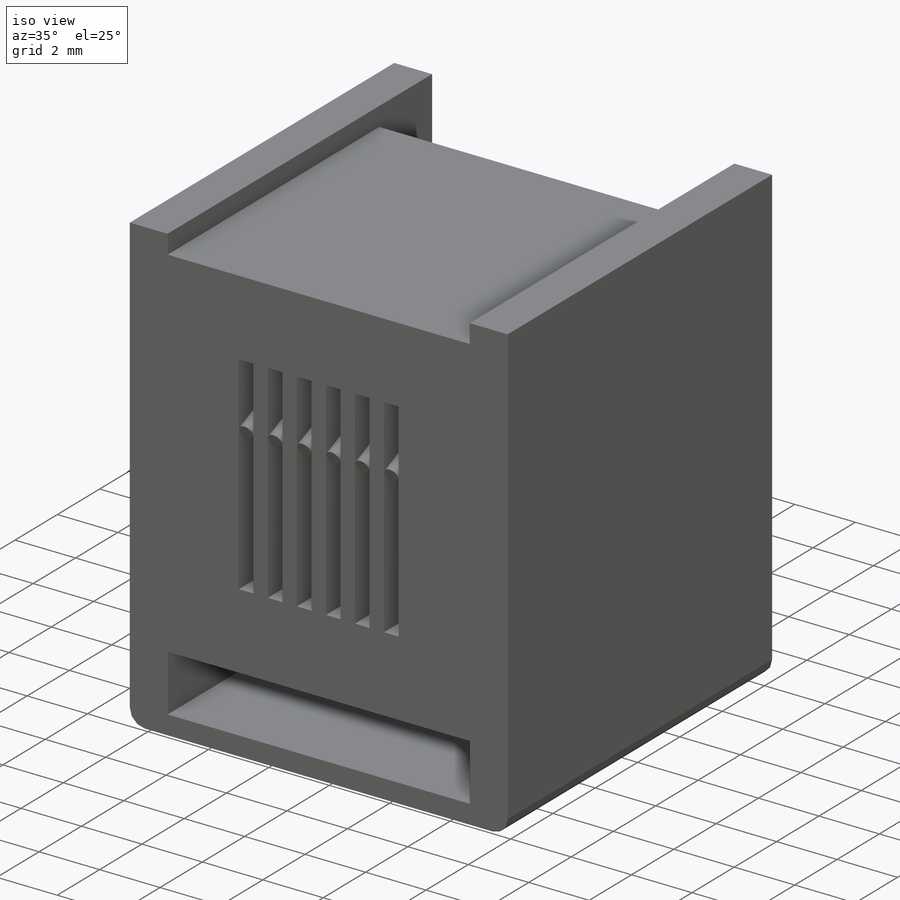
[diagram: iso view]
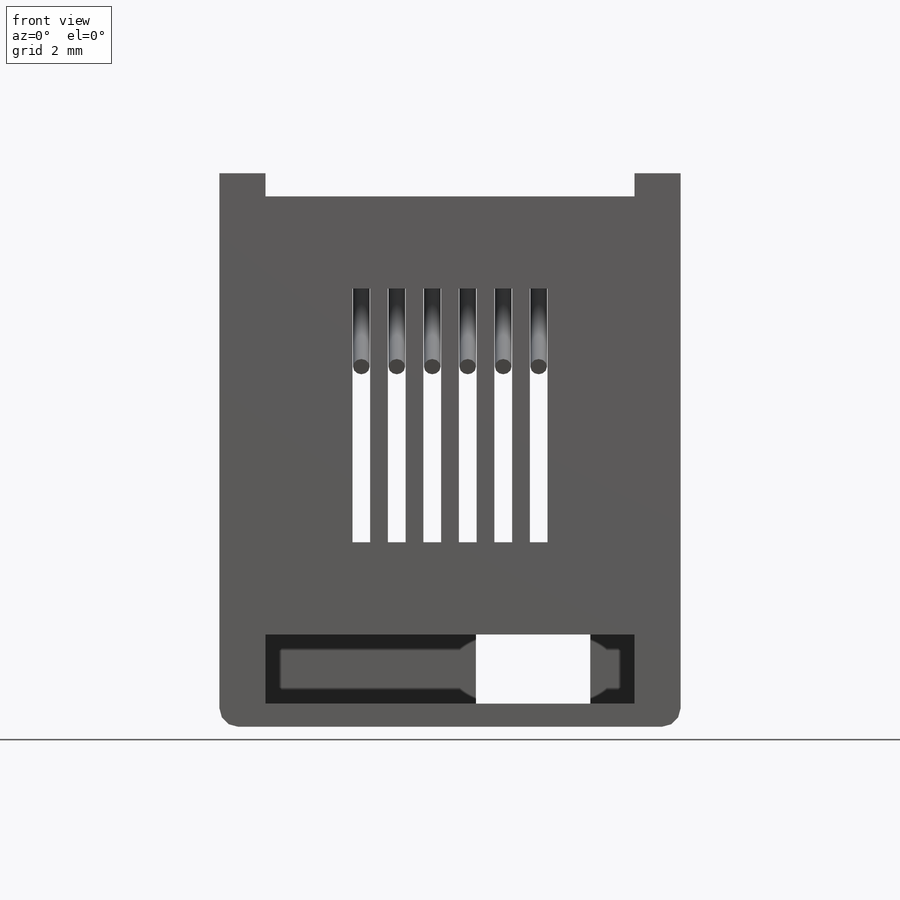
[diagram: front view]
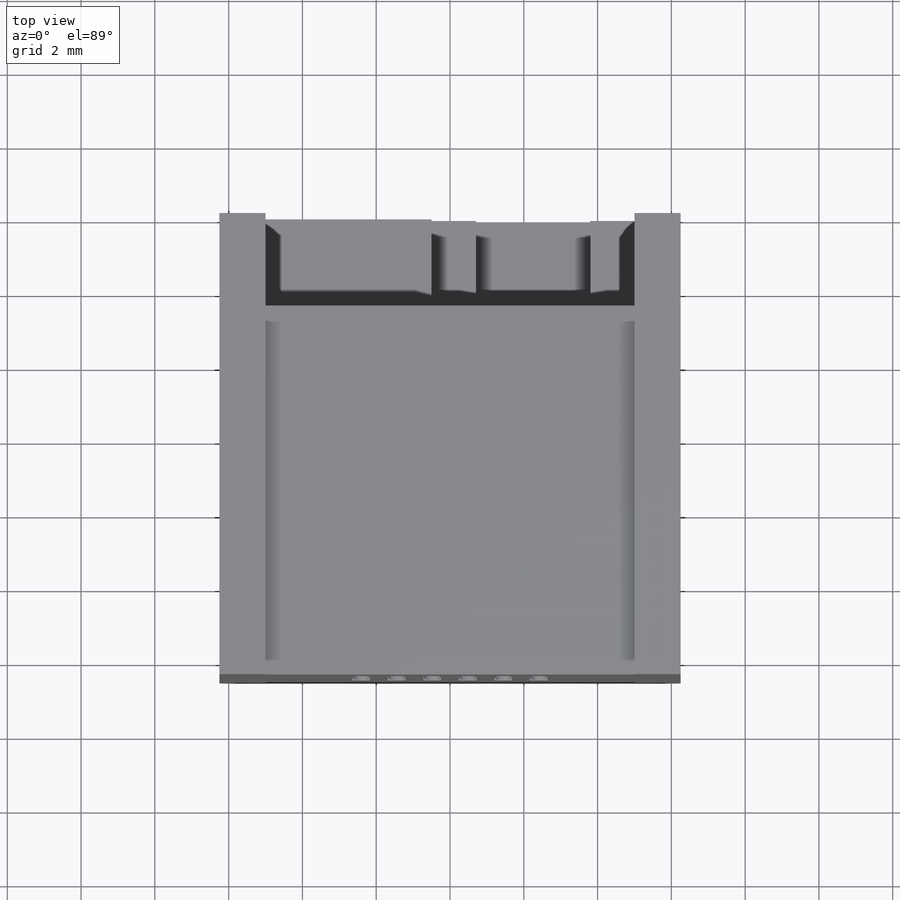
[diagram: top view]
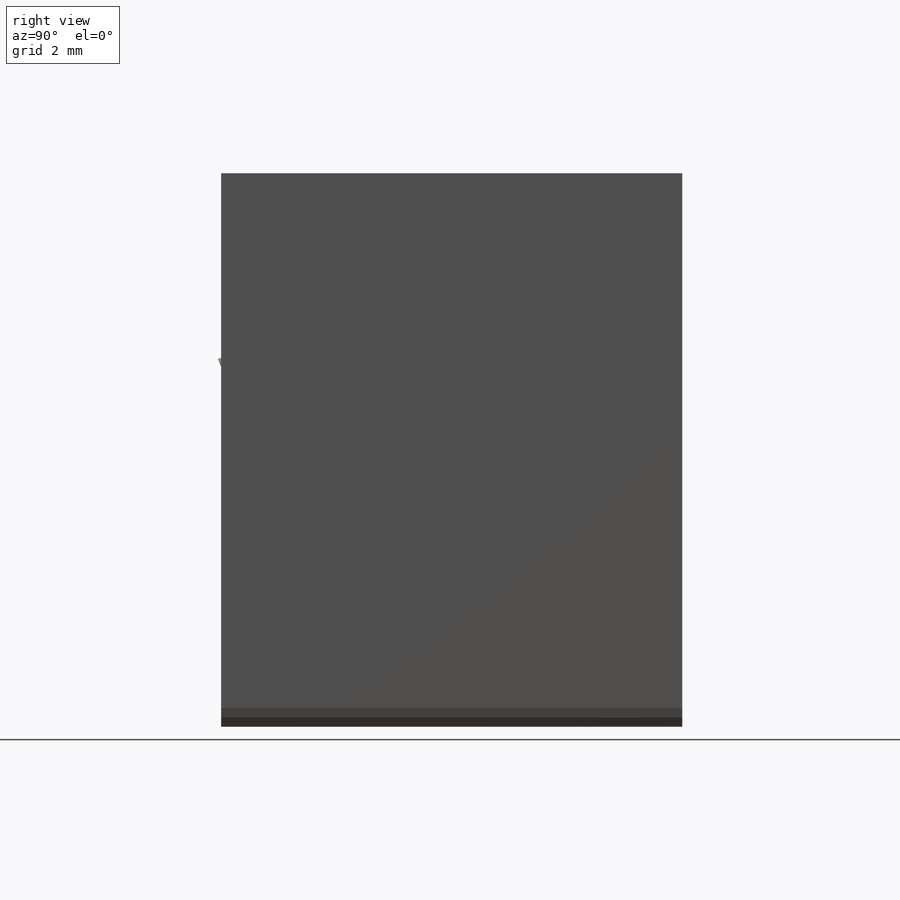
[diagram: right view]
SOLIDWORKS PART (.sldprt)
format: sldprt  version: not decoded by parser v0  size: 424,960 bytes
history: native  units: mm
features: sketch x9, extrude x6, material x1, cut_extrude x1, sweep x1, fillet x1 (+15 scaffold rows collapsed)
feature tree (34):
  scaffold x15  (default folders/planes/origin — collapsed)
  material  "Material <not specified>"
  sketch  "Sketch1"  dims[c1.D1=12.5mm c1.D2=15.0mm c1.D3=10.0mm c1.D4=5.0mm c1.D5=0.625mm c1.D6=5.0mm c1.D7=~0.862593mm c2.D6=5.5mm c2.D7=3.125mm c2.D8=2.5mm c2.D9=5.5mm c2.D10=3.1mm]
  extrude  "Extrude2"  Depth=12.5mm
  sketch  "Sketch2"  dims[c1.D1=1.875mm c1.D2=6.875mm c1.D3=0.625mm c1.D4=0.625mm c1.D5=6.875mm c2.D2=6.875mm]
  extrude  "Extrude3"  Depth=2.5mm
  sketch  "Sketch3"  dims[c1.D1=2.5mm c1.D2=~0.576923mm c1.D3=~0.576923mm c2.D2=~0.576923mm c2.D3=4.375mm c3.D2=~0.576923mm c3.D4=~0.576923mm c4.D2=~0.576923mm]
  extrude  "Extrude4"  [1 undecoded]
  sketch  "Sketch4"  dims[D1=90.0deg]
  extrude  "Extrude5"  Depth=1.25mm
  sketch  "Sketch5"  dims[D1=0.1mm]
  extrude  "Extrude6"  Depth=0.625mm
  sketch  "Sketch6"
  cut_extrude  "Cut-Extrude1"  Depth=2.5mm
  sketch  "Sketch7"  dims[D1=0.625mm D2=~0.46875mm D3=0.5mm D4=0.6mm]
  extrude  "Extrude7"  Depth=1.25mm
  sketch  "Sketch8"  dims[D1=0.015mm]
  sketch  "Sketch9"  dims[c1.D3=0.5mm c1.D1=3.75mm c1.D2=5.5mm c2.D3=3.4375mm c2.D1=3.75mm]
  sweep  "Sweep1"
  fillet  "Fillet1"  Radius=0.5mm
decode coverage: 15 of 18 modeling features carry decoded parameters
note: ~ marks probable driven/reference dimensions
note: 1 parameter value undecoded
note: suppression state not decoded; provenance and decode notes live in map.json
